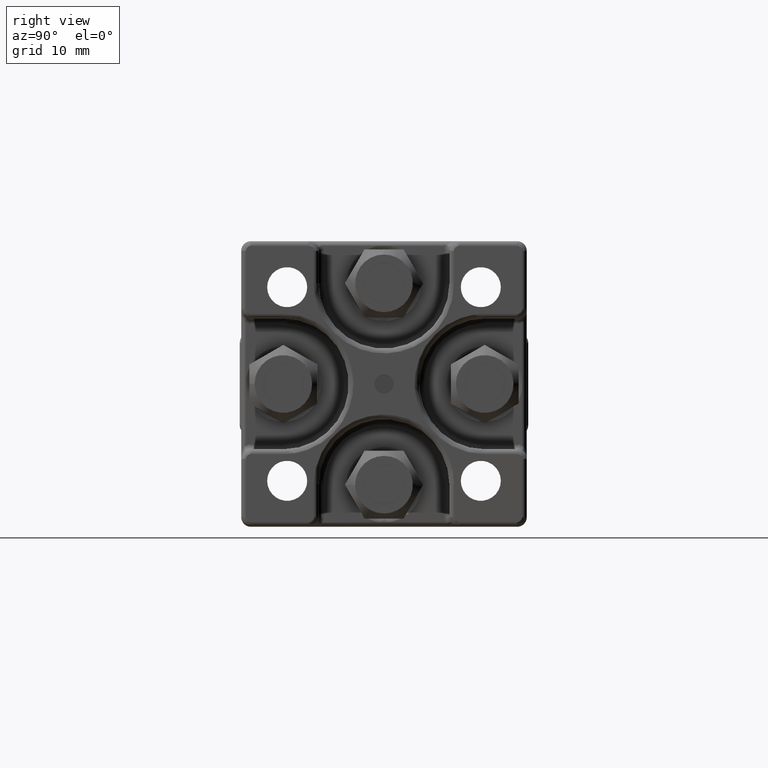
[diagram: clean part render]
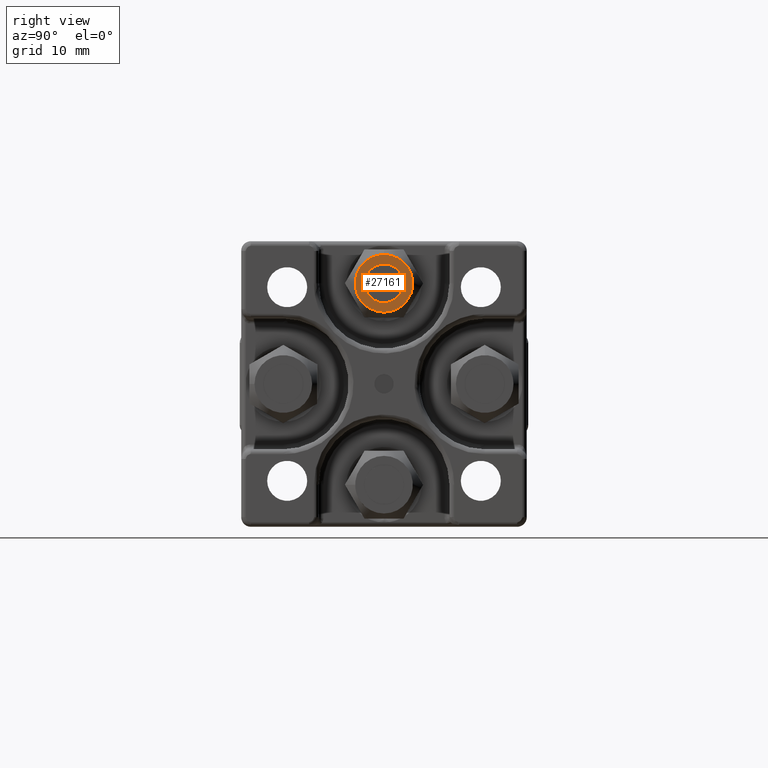
[diagram: same view with one face highlighted and labeled with its STEP entity id]
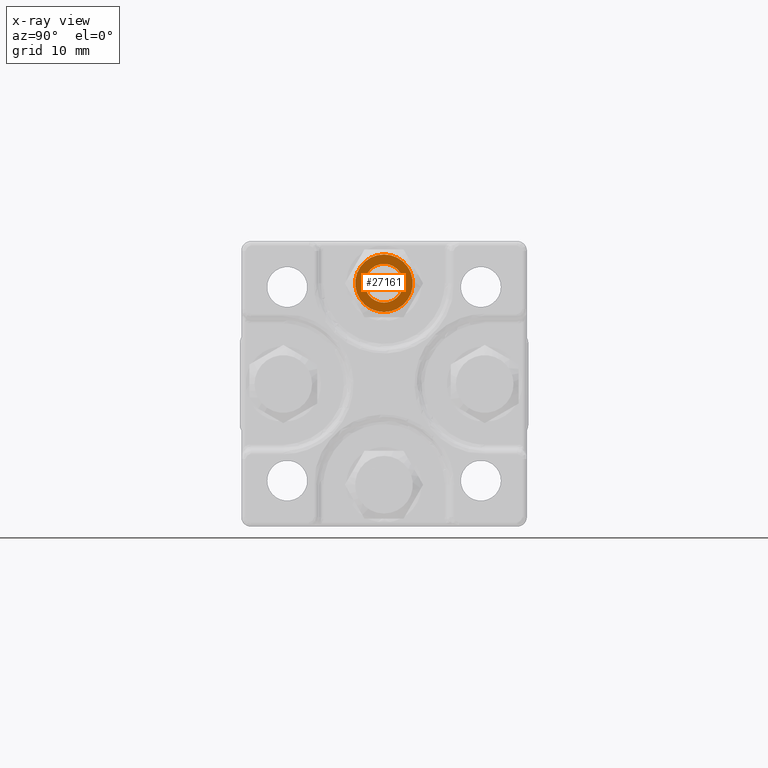
[diagram: x-ray of the same camera — body ghosted, the highlighted face saturated]
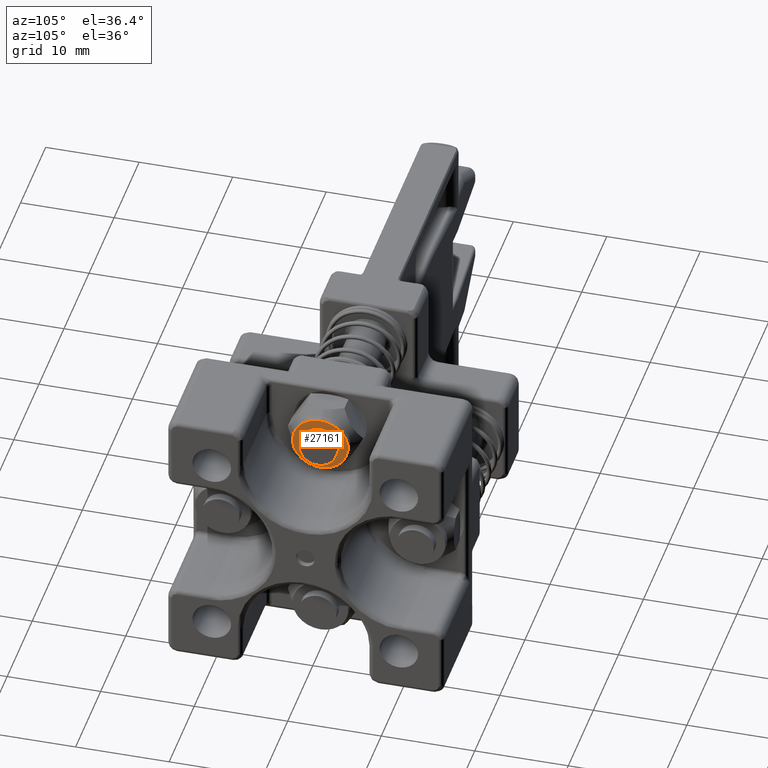
[diagram: same view with one face highlighted and labeled with its STEP entity id]
A machine part, right view. The second image highlights one B-rep face of the part: STEP entity #27161.
The next image is the same camera in x-ray: the body ghosted, the highlighted face saturated — about 0% of this face is hidden behind the body in this view.
A second angle (auxiliary view) of the same face is appended — the face is thin or edge-on in the first view.
In plain terms, the highlighted planar face has unit normal (1, -0, 0).
Its self-contained STEP definition (entity closure, byte-faithful):
#418 = AXIS2_PLACEMENT_3D ( 'NONE', #14589, #2199, #7926 ) ;
#2199 = DIRECTION ( 'NONE',  ( -1.000000000000000000, -0.0000000000000000000, -8.674111309748952300E-016 ) ) ;
#3331 = CARTESIAN_POINT ( 'NONE',  ( 1.062007874015747500, 3.754622954848958500E-009, 0.5265748044402579500 ) ) ;
#3599 = ORIENTED_EDGE ( 'NONE', *, *, #30660, .T. ) ;
#3900 = DIRECTION ( 'NONE',  ( 0.0000000000000000000, 0.0000000000000000000, 1.000000000000000000 ) ) ;
#5192 = CIRCLE ( 'NONE', #418, 0.07873567378003049100 ) ;
#5367 = EDGE_LOOP ( 'NONE', ( #30816 ) ) ;
#5500 = FACE_BOUND ( 'NONE', #5367, .T. ) ;
#7926 = DIRECTION ( 'NONE',  ( 1.734822261949788700E-015, 0.0000000000000000000, -1.000000000000000000 ) ) ;
#11185 = EDGE_CURVE ( 'NONE', #32861, #32861, #5192, .T. ) ;
#12732 = PLANE ( 'NONE',  #36681 ) ;
#14589 = CARTESIAN_POINT ( 'NONE',  ( 1.062007874024427900, 3.754622953308169200E-009, 0.4094488201882895400 ) ) ;
#16162 = DIRECTION ( 'NONE',  ( 1.000000000000000000, 1.282514000000000100E-016, 1.483648000000000100E-016 ) ) ;
#19097 = CARTESIAN_POINT ( 'NONE',  ( 1.062007874015747500, 3.754622992125984300E-009, 0.4094488201882894900 ) ) ;
#19744 = VERTEX_POINT ( 'NONE', #3331 ) ;
#26796 = CIRCLE ( 'NONE', #36197, 0.1171259842519685200 ) ;
#27161 = ADVANCED_FACE ( 'NONE', ( #5500, #36563 ), #12732, .T. ) ;
#29025 = CARTESIAN_POINT ( 'NONE',  ( 1.062007874015747500, 3.754622954848958500E-009, 0.4094488201882894900 ) ) ;
#29735 = EDGE_LOOP ( 'NONE', ( #3599 ) ) ;
#30660 = EDGE_CURVE ( 'NONE', #19744, #19744, #26796, .T. ) ;
#30816 = ORIENTED_EDGE ( 'NONE', *, *, #11185, .T. ) ;
#31550 = DIRECTION ( 'NONE',  ( 1.000000000000000000, -0.0000000000000000000, 0.0000000000000000000 ) ) ;
#32861 = VERTEX_POINT ( 'NONE', #39326 ) ;
#36197 = AXIS2_PLACEMENT_3D ( 'NONE', #29025, #16162, #3900 ) ;
#36563 = FACE_OUTER_BOUND ( 'NONE', #29735, .T. ) ;
#36681 = AXIS2_PLACEMENT_3D ( 'NONE', #19097, #31550, #37928 ) ;
#37928 = DIRECTION ( 'NONE',  ( 0.0000000000000000000, 0.0000000000000000000, -1.000000000000000000 ) ) ;
#39326 = CARTESIAN_POINT ( 'NONE',  ( 1.062007874024427900, 3.754622953308169200E-009, 0.3307131464082590500 ) ) ;